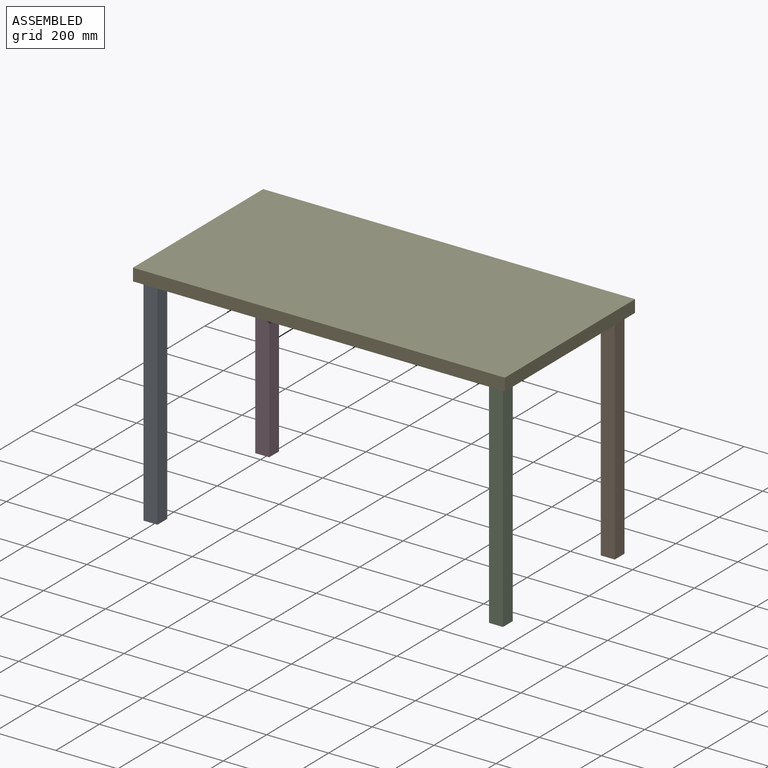
[diagram: assembled view]
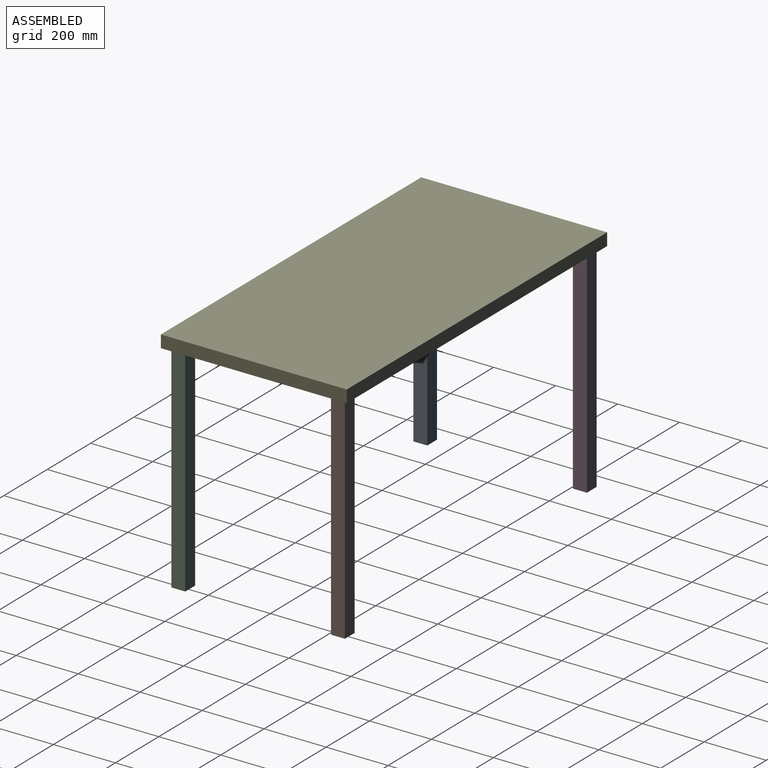
[diagram: assembled view, second angle]
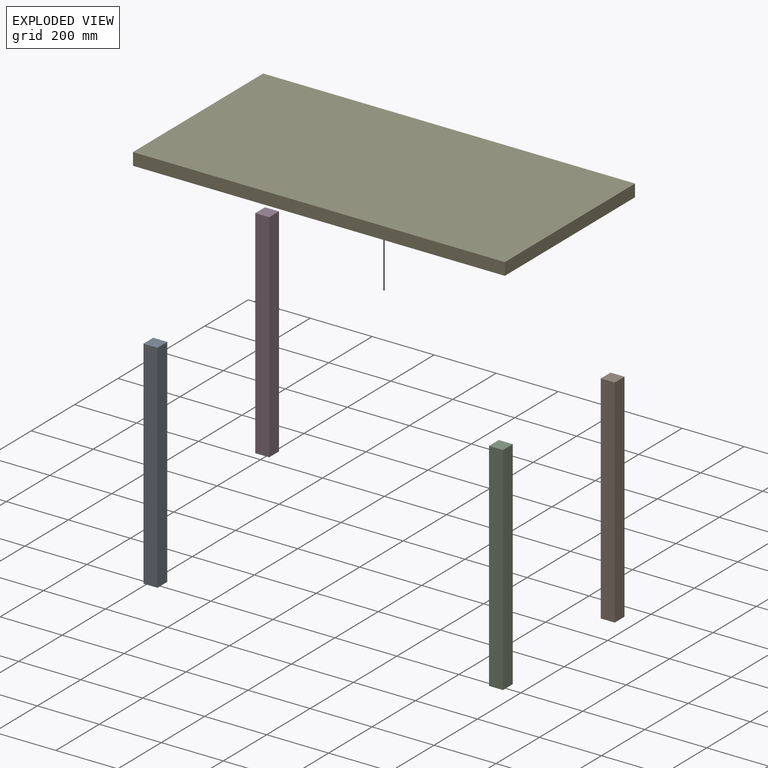
[diagram: exploded view]
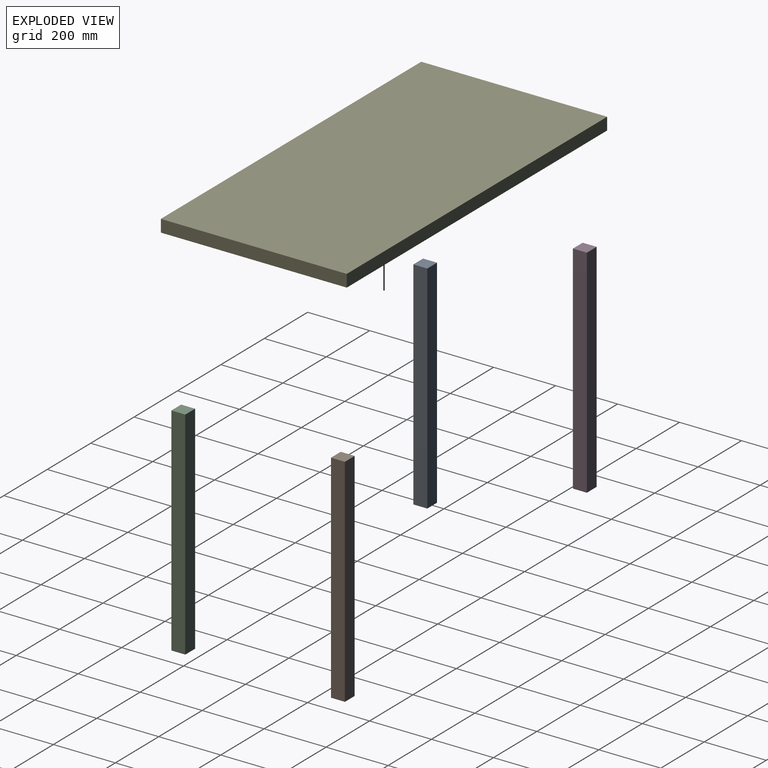
[diagram: exploded view, second angle]
ASSEMBLY  parts=5 mates=4
PART A: 6 faces, bbox 45x45x700 mm
  f0: plane 700x45mm, normal (-1,0,0), area 31500mm2, adj f1,f3,f4,f5
  f1: plane 700x45mm, normal (0,-1,0), area 31500mm2, adj f0,f2,f4,f5
  f2: plane 700x45mm, normal (1,0,0), area 31500mm2, adj f1,f3,f4,f5
  f3: plane 700x45mm, normal (0,1,0), area 31500mm2, adj f0,f2,f4,f5
  f4: plane 45x45mm, normal (0,0,1), area 2025mm2, adj f0,f1,f2,f3
  f5: plane 45x45mm, normal (0,0,-1), area 2025mm2, adj f0,f1,f2,f3
PART B: same geometry as A
PART C: same geometry as A
PART D: same geometry as A
PART E: 6 faces, bbox 1200x600x40 mm
  f0: plane 600x40mm, normal (-1,0,0), area 24000mm2, adj f1,f3,f4,f5
  f1: plane 1200x40mm, normal (0,-1,0), area 48000mm2, adj f0,f2,f4,f5
  f2: plane 600x40mm, normal (1,0,0), area 24000mm2, adj f1,f3,f4,f5
  f3: plane 1200x40mm, normal (0,1,0), area 48000mm2, adj f0,f2,f4,f5
  f4: plane 1200x600mm, normal (0,0,1), area 720000mm2, adj f0,f1,f2,f3
  f5: plane 1200x600mm, normal (0,0,-1), area 720000mm2, adj f0,f1,f2,f3
PLACE A t=(-549.25,-245.75,-720.24)mm
PLACE B t=(565.75,269.25,-720.24)mm
PLACE C t=(565.75,-245.75,-720.24)mm
PLACE D t=(-549.25,269.25,-720.24)mm
PLACE E t=(-0.1,26.66,-20.24)mm fixed
MATE fastened C.f4 <-> E.f5  axis (0,0,1) through (579.9,-253.34,-20.24)mm
MATE fastened A.f4 <-> E.f5  axis (0,0,1) through (-580.1,-253.34,-20.24)mm
MATE fastened B.f4 <-> E.f5  axis (0,0,-1) through (579.9,306.66,-20.24)mm
MATE fastened D.f4 <-> E.f5  axis (0,0,1) through (-580.1,306.66,-20.24)mm
